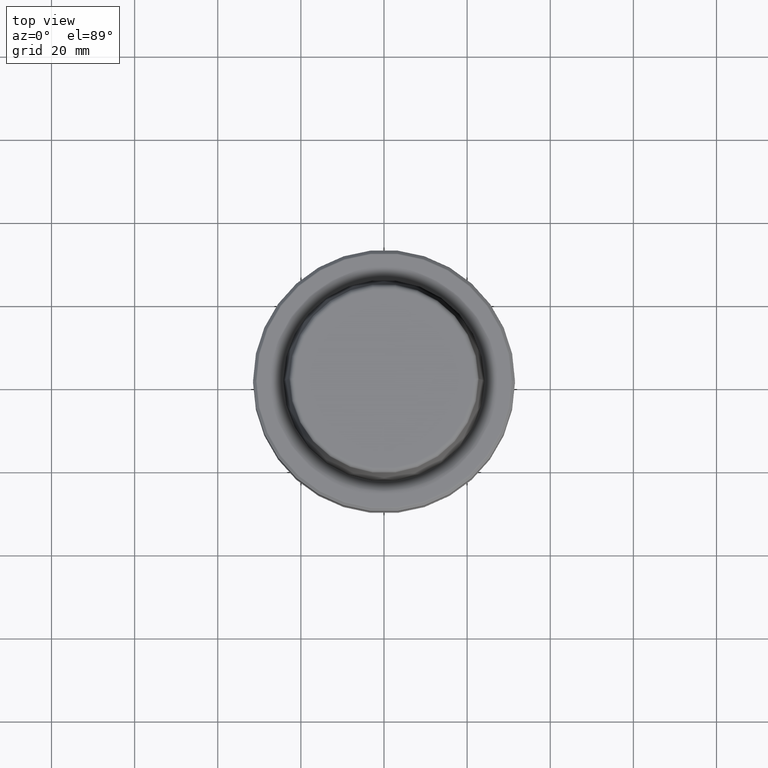
[diagram: clean part render]
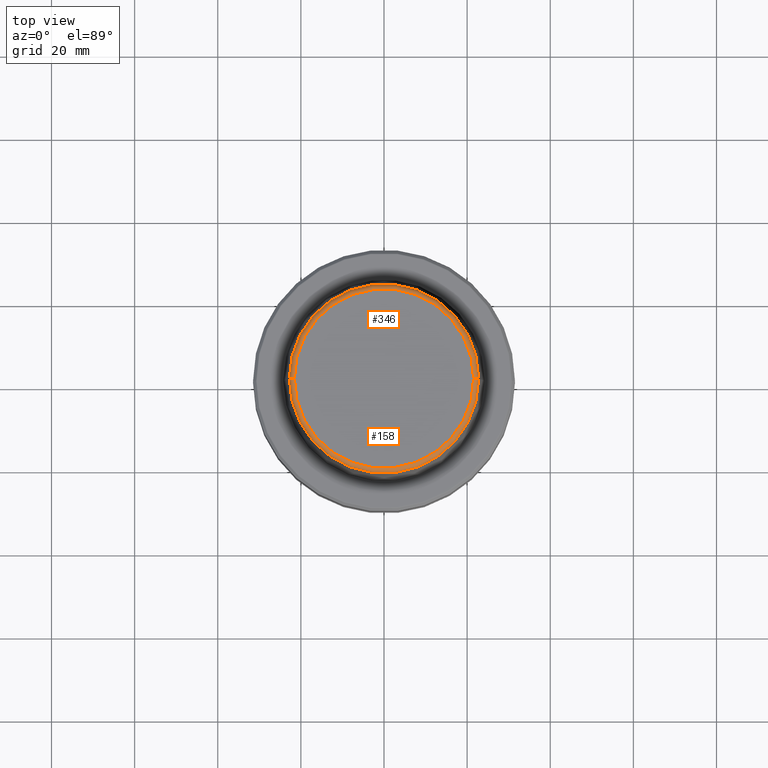
[diagram: same view with one multi-face feature highlighted, each face labeled with its STEP entity id]
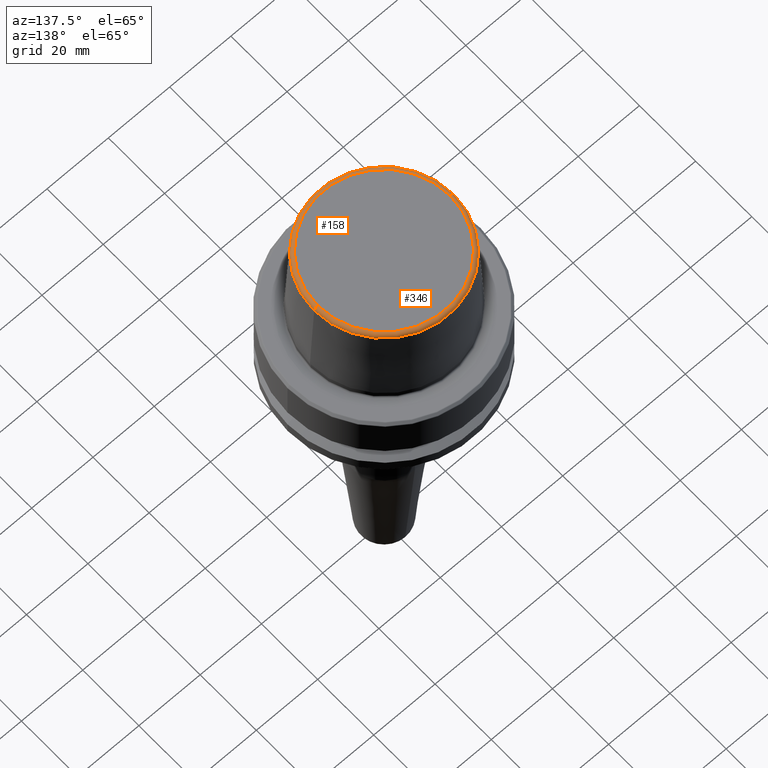
[diagram: same view with one multi-face feature highlighted, each face labeled with its STEP entity id]
A machine part, top view. The highlighted faces form ONE feature: a constant-radius fillet chain: 2 tangent blend faces with common blend radius 1.2 mm. The faces share edges in the B-rep.
A second angle (auxiliary view) of the same feature is appended — it is thin or edge-on in the first view.
Their STEP definitions:
[1] entity #158 (Torus):
#75 = CARTESIAN_POINT ( 'NONE',  ( 0.0000000000000000000, 0.0000000000000000000, 30.76004333261571900 ) ) ;
#96 = EDGE_LOOP ( 'NONE', ( #455, #134, #97, #597 ) ) ;
#97 = ORIENTED_EDGE ( 'NONE', *, *, #697, .T. ) ;
#134 = ORIENTED_EDGE ( 'NONE', *, *, #443, .T. ) ;
#158 = ADVANCED_FACE ( 'NONE', ( #515 ), #768, .T. ) ;
#164 = DIRECTION ( 'NONE',  ( 1.000000000000000000, 0.0000000000000000000, 0.0000000000000000000 ) ) ;
#183 = CARTESIAN_POINT ( 'NONE',  ( 0.0000000000000000000, 0.0000000000000000000, 30.69999999999999200 ) ) ;
#188 = VERTEX_POINT ( 'NONE', #1213 ) ;
#220 = VERTEX_POINT ( 'NONE', #778 ) ;
#241 = CIRCLE ( 'NONE', #1189, 1.200000000000003100 ) ;
#284 = VERTEX_POINT ( 'NONE', #738 ) ;
#303 = DIRECTION ( 'NONE',  ( 1.000000000000000000, 0.0000000000000000000, 0.0000000000000000000 ) ) ;
#330 = AXIS2_PLACEMENT_3D ( 'NONE', #75, #469, #164 ) ;
#345 = DIRECTION ( 'NONE',  ( -0.0000000000000000000, -0.0000000000000000000, 1.000000000000000000 ) ) ;
#379 = AXIS2_PLACEMENT_3D ( 'NONE', #978, #405, #1073 ) ;
#392 = VERTEX_POINT ( 'NONE', #1141 ) ;
#405 = DIRECTION ( 'NONE',  ( 0.0000000000000000000, -1.000000000000000000, 0.0000000000000000000 ) ) ;
#443 = EDGE_CURVE ( 'NONE', #220, #188, #1197, .T. ) ;
#448 = CIRCLE ( 'NONE', #379, 1.200000000000003100 ) ;
#455 = ORIENTED_EDGE ( 'NONE', *, *, #1060, .F. ) ;
#467 = CARTESIAN_POINT ( 'NONE',  ( 0.0000000000000000000, 0.0000000000000000000, 31.89999999999999900 ) ) ;
#469 = DIRECTION ( 'NONE',  ( -0.0000000000000000000, -0.0000000000000000000, 1.000000000000000000 ) ) ;
#483 = DIRECTION ( 'NONE',  ( 1.000000000000000000, 0.0000000000000000000, 0.0000000000000000000 ) ) ;
#486 = DIRECTION ( 'NONE',  ( 1.224646799147353200E-016, 1.000000000000000000, 0.0000000000000000000 ) ) ;
#515 = FACE_OUTER_BOUND ( 'NONE', #96, .T. ) ;
#571 = CIRCLE ( 'NONE', #1177, 21.58108272732117100 ) ;
#574 = EDGE_CURVE ( 'NONE', #284, #392, #571, .T. ) ;
#597 = ORIENTED_EDGE ( 'NONE', *, *, #574, .F. ) ;
#697 = EDGE_CURVE ( 'NONE', #188, #392, #448, .T. ) ;
#738 = CARTESIAN_POINT ( 'NONE',  ( -21.58108272732117100, 2.716307157494421400E-015, 31.89999999999999900 ) ) ;
#768 = TOROIDAL_SURFACE ( 'NONE', #1223, 21.58108272732117100, 1.200000000000003100 ) ;
#778 = CARTESIAN_POINT ( 'NONE',  ( -22.77957961851797100, 0.0000000000000000000, 30.76004333261571900 ) ) ;
#960 = DIRECTION ( 'NONE',  ( -0.0000000000000000000, -0.0000000000000000000, 1.000000000000000000 ) ) ;
#978 = CARTESIAN_POINT ( 'NONE',  ( 21.58108272732117100, 0.0000000000000000000, 30.69999999999999200 ) ) ;
#1055 = CARTESIAN_POINT ( 'NONE',  ( -21.58108272732117100, 2.642920388414810300E-015, 30.69999999999999200 ) ) ;
#1060 = EDGE_CURVE ( 'NONE', #220, #284, #241, .T. ) ;
#1073 = DIRECTION ( 'NONE',  ( 0.0000000000000000000, 0.0000000000000000000, -1.000000000000000000 ) ) ;
#1141 = CARTESIAN_POINT ( 'NONE',  ( 21.58108272732117100, 0.0000000000000000000, 31.89999999999999900 ) ) ;
#1153 = DIRECTION ( 'NONE',  ( -1.000000000000000000, 1.224646799147353200E-016, 0.0000000000000000000 ) ) ;
#1177 = AXIS2_PLACEMENT_3D ( 'NONE', #467, #960, #303 ) ;
#1189 = AXIS2_PLACEMENT_3D ( 'NONE', #1055, #486, #1153 ) ;
#1197 = CIRCLE ( 'NONE', #330, 22.77957961851797100 ) ;
#1213 = CARTESIAN_POINT ( 'NONE',  ( 22.77957961851797100, 2.876386432489616700E-015, 30.76004333261571900 ) ) ;
#1223 = AXIS2_PLACEMENT_3D ( 'NONE', #183, #345, #483 ) ;
[2] entity #346 (Torus):
#18 = CARTESIAN_POINT ( 'NONE',  ( 0.0000000000000000000, 0.0000000000000000000, 30.69999999999999200 ) ) ;
#29 = FACE_OUTER_BOUND ( 'NONE', #191, .T. ) ;
#182 = ORIENTED_EDGE ( 'NONE', *, *, #869, .F. ) ;
#188 = VERTEX_POINT ( 'NONE', #1213 ) ;
#191 = EDGE_LOOP ( 'NONE', ( #1057, #876, #182, #1159 ) ) ;
#218 = AXIS2_PLACEMENT_3D ( 'NONE', #840, #257, #937 ) ;
#220 = VERTEX_POINT ( 'NONE', #778 ) ;
#241 = CIRCLE ( 'NONE', #1189, 1.200000000000003100 ) ;
#257 = DIRECTION ( 'NONE',  ( -0.0000000000000000000, -0.0000000000000000000, 1.000000000000000000 ) ) ;
#284 = VERTEX_POINT ( 'NONE', #738 ) ;
#310 = DIRECTION ( 'NONE',  ( 1.000000000000000000, 0.0000000000000000000, 0.0000000000000000000 ) ) ;
#346 = ADVANCED_FACE ( 'NONE', ( #29 ), #1008, .T. ) ;
#379 = AXIS2_PLACEMENT_3D ( 'NONE', #978, #405, #1073 ) ;
#392 = VERTEX_POINT ( 'NONE', #1141 ) ;
#399 = CIRCLE ( 'NONE', #218, 21.58108272732117100 ) ;
#404 = CIRCLE ( 'NONE', #470, 22.77957961851797100 ) ;
#405 = DIRECTION ( 'NONE',  ( 0.0000000000000000000, -1.000000000000000000, 0.0000000000000000000 ) ) ;
#448 = CIRCLE ( 'NONE', #379, 1.200000000000003100 ) ;
#464 = EDGE_CURVE ( 'NONE', #188, #220, #404, .T. ) ;
#470 = AXIS2_PLACEMENT_3D ( 'NONE', #1255, #1015, #1144 ) ;
#486 = DIRECTION ( 'NONE',  ( 1.224646799147353200E-016, 1.000000000000000000, 0.0000000000000000000 ) ) ;
#697 = EDGE_CURVE ( 'NONE', #188, #392, #448, .T. ) ;
#738 = CARTESIAN_POINT ( 'NONE',  ( -21.58108272732117100, 2.716307157494421400E-015, 31.89999999999999900 ) ) ;
#778 = CARTESIAN_POINT ( 'NONE',  ( -22.77957961851797100, 0.0000000000000000000, 30.76004333261571900 ) ) ;
#840 = CARTESIAN_POINT ( 'NONE',  ( 0.0000000000000000000, 0.0000000000000000000, 31.89999999999999900 ) ) ;
#869 = EDGE_CURVE ( 'NONE', #392, #284, #399, .T. ) ;
#876 = ORIENTED_EDGE ( 'NONE', *, *, #1060, .T. ) ;
#937 = DIRECTION ( 'NONE',  ( 1.000000000000000000, 0.0000000000000000000, 0.0000000000000000000 ) ) ;
#957 = DIRECTION ( 'NONE',  ( -0.0000000000000000000, -0.0000000000000000000, 1.000000000000000000 ) ) ;
#978 = CARTESIAN_POINT ( 'NONE',  ( 21.58108272732117100, 0.0000000000000000000, 30.69999999999999200 ) ) ;
#1008 = TOROIDAL_SURFACE ( 'NONE', #1069, 21.58108272732117100, 1.200000000000003100 ) ;
#1015 = DIRECTION ( 'NONE',  ( -0.0000000000000000000, -0.0000000000000000000, 1.000000000000000000 ) ) ;
#1055 = CARTESIAN_POINT ( 'NONE',  ( -21.58108272732117100, 2.642920388414810300E-015, 30.69999999999999200 ) ) ;
#1057 = ORIENTED_EDGE ( 'NONE', *, *, #464, .T. ) ;
#1060 = EDGE_CURVE ( 'NONE', #220, #284, #241, .T. ) ;
#1069 = AXIS2_PLACEMENT_3D ( 'NONE', #18, #957, #310 ) ;
#1073 = DIRECTION ( 'NONE',  ( 0.0000000000000000000, 0.0000000000000000000, -1.000000000000000000 ) ) ;
#1141 = CARTESIAN_POINT ( 'NONE',  ( 21.58108272732117100, 0.0000000000000000000, 31.89999999999999900 ) ) ;
#1144 = DIRECTION ( 'NONE',  ( 1.000000000000000000, 0.0000000000000000000, 0.0000000000000000000 ) ) ;
#1153 = DIRECTION ( 'NONE',  ( -1.000000000000000000, 1.224646799147353200E-016, 0.0000000000000000000 ) ) ;
#1159 = ORIENTED_EDGE ( 'NONE', *, *, #697, .F. ) ;
#1189 = AXIS2_PLACEMENT_3D ( 'NONE', #1055, #486, #1153 ) ;
#1213 = CARTESIAN_POINT ( 'NONE',  ( 22.77957961851797100, 2.876386432489616700E-015, 30.76004333261571900 ) ) ;
#1255 = CARTESIAN_POINT ( 'NONE',  ( 0.0000000000000000000, 0.0000000000000000000, 30.76004333261571900 ) ) ;